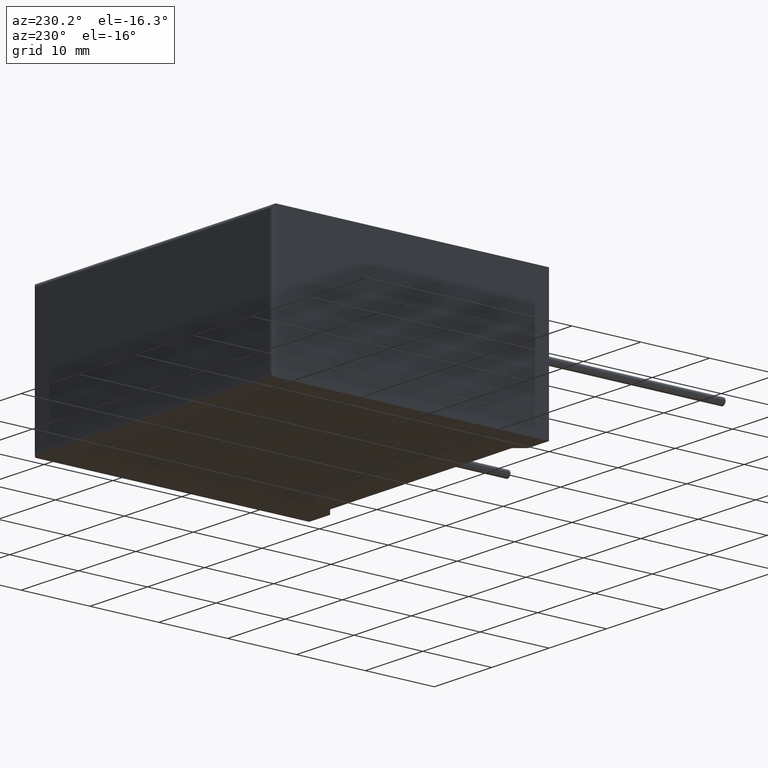
[diagram: clean part render]
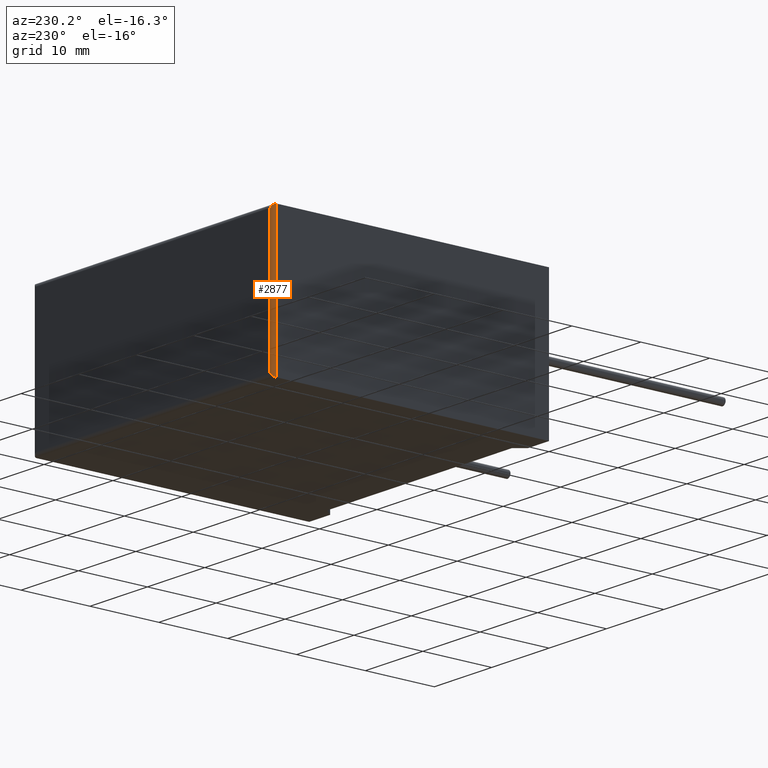
[diagram: same view with one face highlighted and labeled with its STEP entity id]
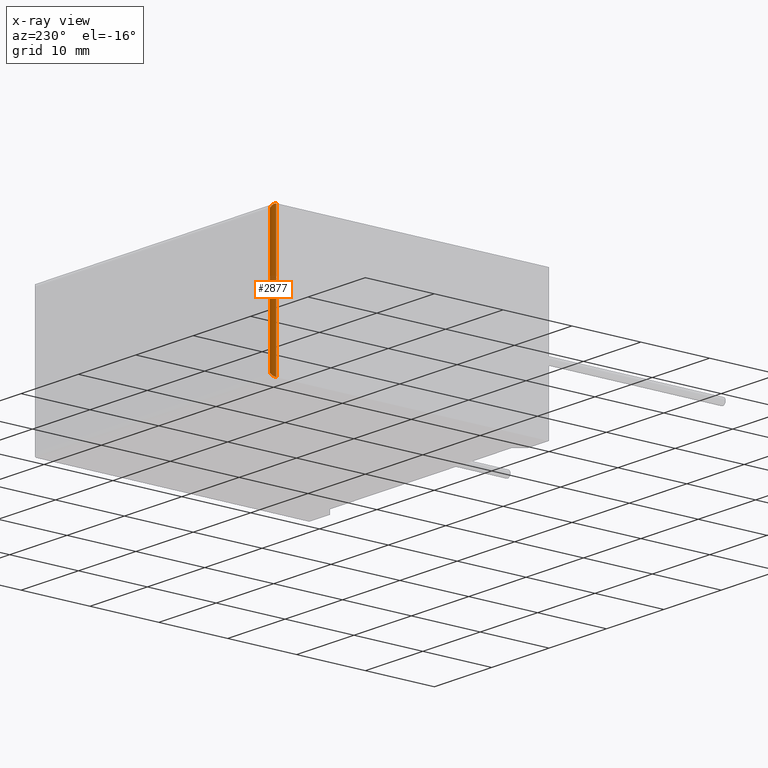
[diagram: x-ray of the same camera — body ghosted, the highlighted face saturated]
A machine part, auxiliary view. The second image highlights one B-rep face of the part: STEP entity #2877.
The next image is the same camera in x-ray: the body ghosted, the highlighted face saturated — about 0% of this face is hidden behind the body in this view.
In plain terms, the highlighted cylindrical surface (edge-blend (fillet) strip) has radius 0.5 mm, axis along (0, 0, -1).
Its self-contained STEP definition (entity closure, byte-faithful):
#107 = CARTESIAN_POINT ( 'NONE',  ( 0.5000000000000000000, 40.10000000000000142, 20.19999999999999929 ) ) ;
#119 = VERTEX_POINT ( 'NONE', #485 ) ;
#122 = CARTESIAN_POINT ( 'NONE',  ( 0.2071067811865475727, 40.10000000000000853, 19.99289321881345316 ) ) ;
#143 = CARTESIAN_POINT ( 'NONE',  ( 0.5000000000000000000, 40.10000000000000142, 0.5000000000000004441 ) ) ;
#158 = CARTESIAN_POINT ( 'NONE',  ( 1.084202172485504434E-16, 39.89289321881344819, 20.19999999999999929 ) ) ;
#354 =( BOUNDED_CURVE ( )  B_SPLINE_CURVE ( 3, ( #143, #650, #429, #401 ),
 .UNSPECIFIED., .F., .T. ) 
 B_SPLINE_CURVE_WITH_KNOTS ( ( 4, 4 ),
 ( 1.570796326794896780, 3.141592653589793116 ),
 .UNSPECIFIED. ) 
 CURVE ( )  GEOMETRIC_REPRESENTATION_ITEM ( )  RATIONAL_B_SPLINE_CURVE ( ( 1.000000000000000000, 0.8047378541243650485, 0.8047378541243650485, 1.000000000000000000 ) ) 
 REPRESENTATION_ITEM ( '' )  );
#375 = CYLINDRICAL_SURFACE ( 'NONE', #2539, 0.5000000000000000000 ) ;
#401 = CARTESIAN_POINT ( 'NONE',  ( 0.000000000000000000, 39.60000000000000142, 0.000000000000000000 ) ) ;
#429 = CARTESIAN_POINT ( 'NONE',  ( 1.442892915397364602E-16, 39.89289321881344819, 5.779701605339383077E-16 ) ) ;
#444 = VECTOR ( 'NONE', #2157, 1000.000000000000000 ) ;
#467 = CARTESIAN_POINT ( 'NONE',  ( 0.000000000000000000, 39.60000000000000142, 20.19999999999999929 ) ) ;
#485 = CARTESIAN_POINT ( 'NONE',  ( 0.5000000000000000000, 40.10000000000000142, 19.69999999999999929 ) ) ;
#545 = EDGE_CURVE ( 'NONE', #728, #119, #2032, .T. ) ;
#650 = CARTESIAN_POINT ( 'NONE',  ( 0.2071067811865475172, 40.09999999999998721, 0.2071067811865479058 ) ) ;
#669 = FACE_OUTER_BOUND ( 'NONE', #1349, .T. ) ;
#728 = VERTEX_POINT ( 'NONE', #467 ) ;
#977 = ORIENTED_EDGE ( 'NONE', *, *, #3059, .F. ) ;
#1190 = CARTESIAN_POINT ( 'NONE',  ( 0.5000000000000000000, 40.10000000000000142, 0.5000000000000004441 ) ) ;
#1334 = CARTESIAN_POINT ( 'NONE',  ( 0.5000000000000000000, 39.60000000000000142, 20.19999999999999929 ) ) ;
#1346 = DIRECTION ( 'NONE',  ( -1.000000000000000000, 0.000000000000000000, 0.000000000000000000 ) ) ;
#1349 = EDGE_LOOP ( 'NONE', ( #1820, #977, #1923, #1953 ) ) ;
#1368 = LINE ( 'NONE', #1998, #1644 ) ;
#1375 = EDGE_CURVE ( 'NONE', #728, #2923, #1368, .T. ) ;
#1426 = EDGE_CURVE ( 'NONE', #2978, #2923, #354, .T. ) ;
#1565 = CARTESIAN_POINT ( 'NONE',  ( 0.5000000000000000000, 40.10000000000000142, 19.69999999999999929 ) ) ;
#1644 = VECTOR ( 'NONE', #2229, 1000.000000000000000 ) ;
#1820 = ORIENTED_EDGE ( 'NONE', *, *, #545, .T. ) ;
#1923 = ORIENTED_EDGE ( 'NONE', *, *, #1426, .T. ) ;
#1953 = ORIENTED_EDGE ( 'NONE', *, *, #1375, .F. ) ;
#1998 = CARTESIAN_POINT ( 'NONE',  ( 0.000000000000000000, 39.60000000000000142, 20.19999999999999929 ) ) ;
#2032 =( BOUNDED_CURVE ( )  B_SPLINE_CURVE ( 3, ( #2228, #158, #122, #1565 ),
 .UNSPECIFIED., .F., .T. ) 
 B_SPLINE_CURVE_WITH_KNOTS ( ( 4, 4 ),
 ( 0.000000000000000000, 1.570796326794896558 ),
 .UNSPECIFIED. ) 
 CURVE ( )  GEOMETRIC_REPRESENTATION_ITEM ( )  RATIONAL_B_SPLINE_CURVE ( ( 1.000000000000000000, 0.8047378541243649375, 0.8047378541243649375, 1.000000000000000000 ) ) 
 REPRESENTATION_ITEM ( '' )  );
#2157 = DIRECTION ( 'NONE',  ( -0.000000000000000000, -0.000000000000000000, 1.000000000000000000 ) ) ;
#2228 = CARTESIAN_POINT ( 'NONE',  ( 0.000000000000000000, 39.60000000000000142, 20.19999999999999929 ) ) ;
#2229 = DIRECTION ( 'NONE',  ( 0.000000000000000000, 0.000000000000000000, -1.000000000000000000 ) ) ;
#2250 = DIRECTION ( 'NONE',  ( 0.000000000000000000, 0.000000000000000000, -1.000000000000000000 ) ) ;
#2539 = AXIS2_PLACEMENT_3D ( 'NONE', #1334, #2250, #1346 ) ;
#2719 = LINE ( 'NONE', #107, #444 ) ;
#2877 = ADVANCED_FACE ( 'NONE', ( #669 ), #375, .T. ) ;
#2923 = VERTEX_POINT ( 'NONE', #2986 ) ;
#2978 = VERTEX_POINT ( 'NONE', #1190 ) ;
#2986 = CARTESIAN_POINT ( 'NONE',  ( 0.000000000000000000, 39.60000000000000142, 0.000000000000000000 ) ) ;
#3059 = EDGE_CURVE ( 'NONE', #2978, #119, #2719, .T. ) ;